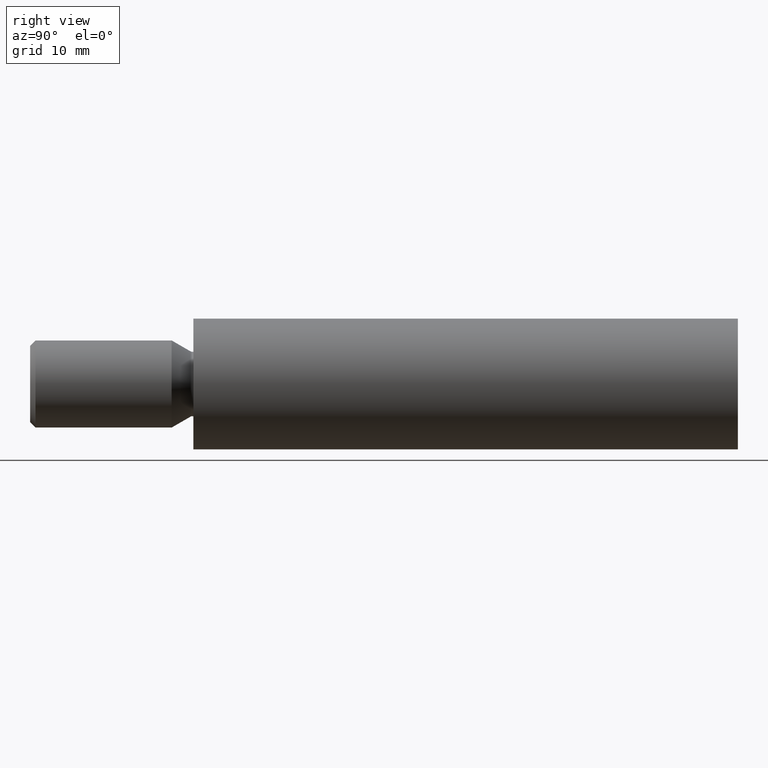
[diagram: clean part render]
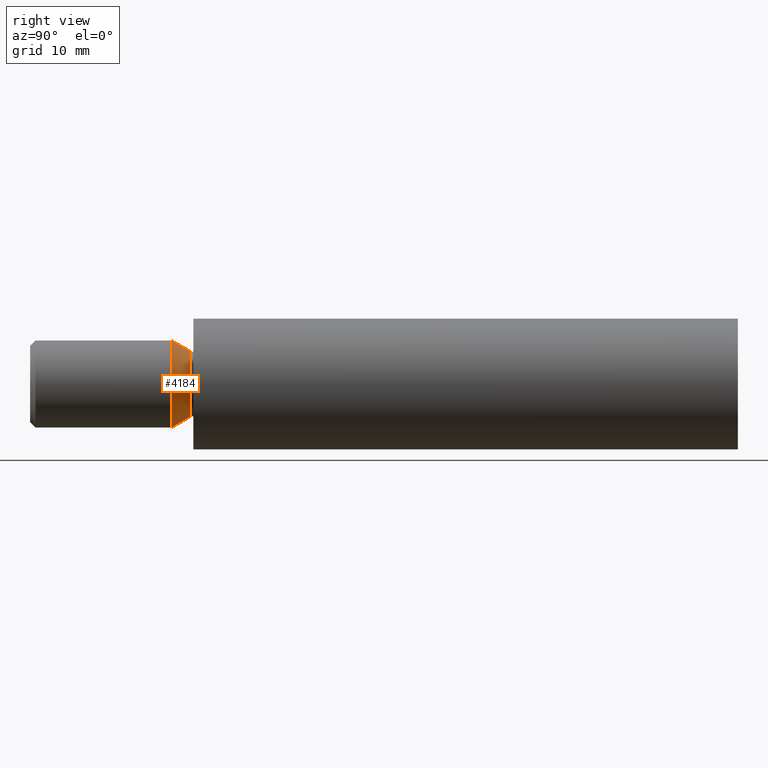
[diagram: same view with one face highlighted and labeled with its STEP entity id]
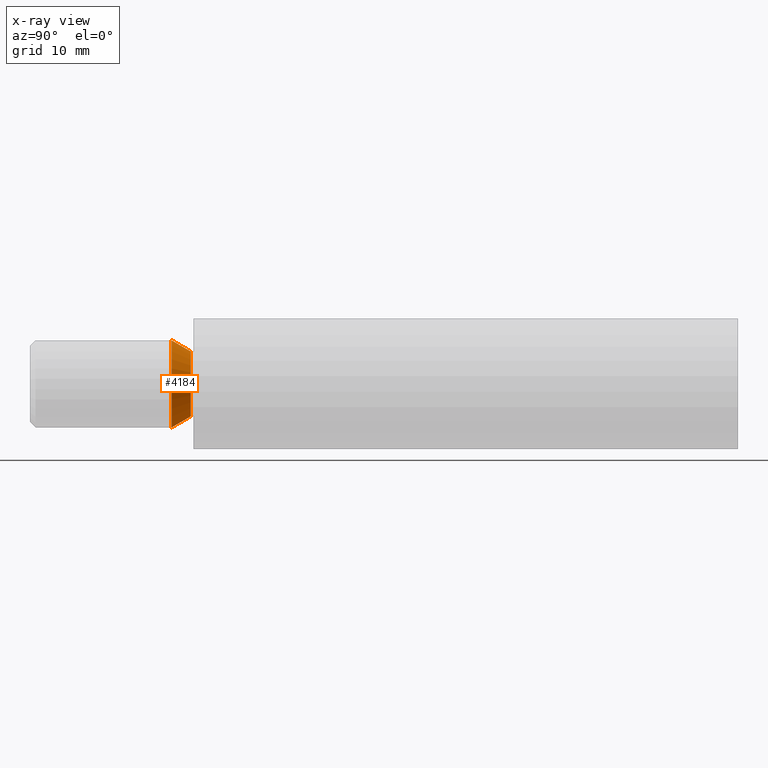
[diagram: x-ray of the same camera — body ghosted, the highlighted face saturated]
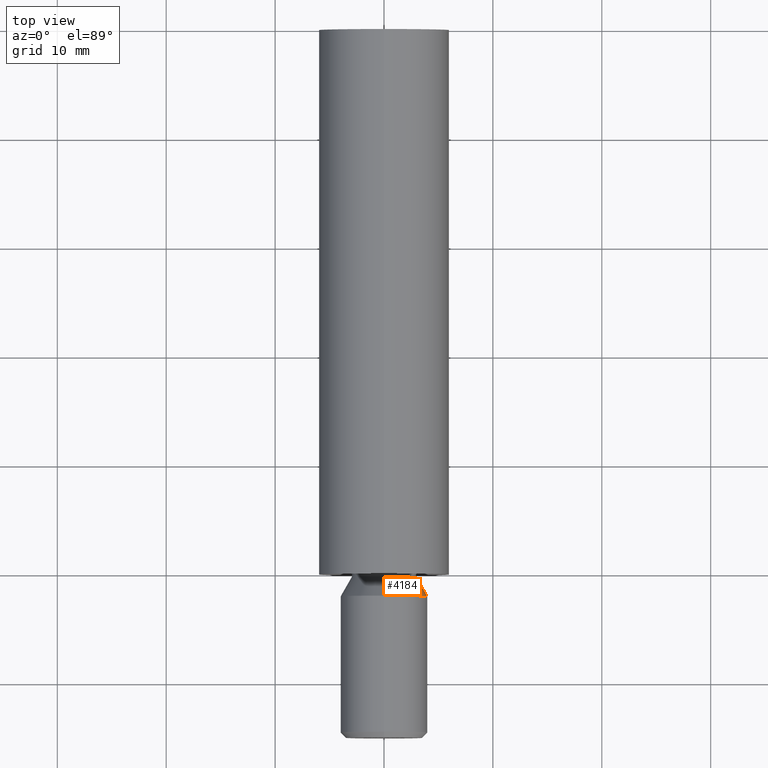
[diagram: same view with one face highlighted and labeled with its STEP entity id]
A machine part, right view. The second image highlights one B-rep face of the part: STEP entity #4184.
The next image is the same camera in x-ray: the body ghosted, the highlighted face saturated — about 0% of this face is hidden behind the body in this view.
A second angle (top view) of the same face is appended — the face is thin or edge-on in the first view.
In plain terms, the highlighted conical surface has half-angle 30 deg.
Its self-contained STEP definition (entity closure, byte-faithful):
#687 = CARTESIAN_POINT ( 'NONE',  ( 0.0000000000000000000, -2.000000000000000000, 0.0000000000000000000 ) ) ;
#784 = ORIENTED_EDGE ( 'NONE', *, *, #8613, .T. ) ;
#1383 = AXIS2_PLACEMENT_3D ( 'NONE', #5819, #2392, #12763 ) ;
#1855 = VERTEX_POINT ( 'NONE', #13666 ) ;
#2306 = EDGE_CURVE ( 'NONE', #8987, #14707, #10253, .T. ) ;
#2392 = DIRECTION ( 'NONE',  ( -0.0000000000000000000, -1.000000000000000000, -0.0000000000000000000 ) ) ;
#2636 = EDGE_LOOP ( 'NONE', ( #784, #11830, #14916, #7945 ) ) ;
#3145 = CARTESIAN_POINT ( 'NONE',  ( 0.0000000000000000000, -2.000000000000000000, 0.0000000000000000000 ) ) ;
#4184 = ADVANCED_FACE ( 'NONE', ( #4299 ), #10622, .T. ) ;
#4299 = FACE_OUTER_BOUND ( 'NONE', #2636, .T. ) ;
#4722 = CIRCLE ( 'NONE', #10835, 4.000000000000000000 ) ;
#4812 = CARTESIAN_POINT ( 'NONE',  ( 0.0000000000000000000, -0.2679491924311300200, -3.000000000000000000 ) ) ;
#5819 = CARTESIAN_POINT ( 'NONE',  ( 0.0000000000000000000, -0.2679491924311300200, 0.0000000000000000000 ) ) ;
#6580 = DIRECTION ( 'NONE',  ( 0.0000000000000000000, 0.0000000000000000000, -1.000000000000000000 ) ) ;
#6896 = CARTESIAN_POINT ( 'NONE',  ( 4.898587196589412800E-016, -2.000000000000000000, 4.000000000000000000 ) ) ;
#6957 = VECTOR ( 'NONE', #14432, 1000.000000000000200 ) ;
#7662 = DIRECTION ( 'NONE',  ( -0.0000000000000000000, -1.000000000000000000, -0.0000000000000000000 ) ) ;
#7945 = ORIENTED_EDGE ( 'NONE', *, *, #11937, .F. ) ;
#8177 = LINE ( 'NONE', #12143, #6957 ) ;
#8613 = EDGE_CURVE ( 'NONE', #11046, #8987, #13713, .T. ) ;
#8946 = CARTESIAN_POINT ( 'NONE',  ( 4.286263797015736600E-016, -0.2679491924311300200, 3.000000000000000000 ) ) ;
#8987 = VERTEX_POINT ( 'NONE', #8946 ) ;
#9057 = AXIS2_PLACEMENT_3D ( 'NONE', #687, #13182, #13288 ) ;
#10253 = LINE ( 'NONE', #6896, #13301 ) ;
#10622 = CONICAL_SURFACE ( 'NONE', #9057, 4.000000000000000000, 0.5235987755983007000 ) ;
#10835 = AXIS2_PLACEMENT_3D ( 'NONE', #3145, #7662, #6580 ) ;
#11046 = VERTEX_POINT ( 'NONE', #4812 ) ;
#11681 = EDGE_CURVE ( 'NONE', #1855, #14707, #4722, .T. ) ;
#11691 = DIRECTION ( 'NONE',  ( 6.123233995736783300E-017, -0.8660254037844377100, 0.5000000000000015500 ) ) ;
#11830 = ORIENTED_EDGE ( 'NONE', *, *, #2306, .T. ) ;
#11937 = EDGE_CURVE ( 'NONE', #11046, #1855, #8177, .T. ) ;
#12143 = CARTESIAN_POINT ( 'NONE',  ( 0.0000000000000000000, -2.000000000000000000, -4.000000000000000000 ) ) ;
#12763 = DIRECTION ( 'NONE',  ( 0.0000000000000000000, 0.0000000000000000000, -1.000000000000000000 ) ) ;
#13182 = DIRECTION ( 'NONE',  ( -0.0000000000000000000, -1.000000000000000000, -0.0000000000000000000 ) ) ;
#13288 = DIRECTION ( 'NONE',  ( 0.0000000000000000000, 0.0000000000000000000, -1.000000000000000000 ) ) ;
#13301 = VECTOR ( 'NONE', #11691, 1000.000000000000200 ) ;
#13401 = CARTESIAN_POINT ( 'NONE',  ( 4.898587196589413800E-016, -2.000000000000000000, 4.000000000000000000 ) ) ;
#13666 = CARTESIAN_POINT ( 'NONE',  ( 0.0000000000000000000, -2.000000000000000000, -4.000000000000000000 ) ) ;
#13713 = CIRCLE ( 'NONE', #1383, 3.000000000000000000 ) ;
#14432 = DIRECTION ( 'NONE',  ( 0.0000000000000000000, -0.8660254037844377100, -0.5000000000000015500 ) ) ;
#14707 = VERTEX_POINT ( 'NONE', #13401 ) ;
#14916 = ORIENTED_EDGE ( 'NONE', *, *, #11681, .F. ) ;